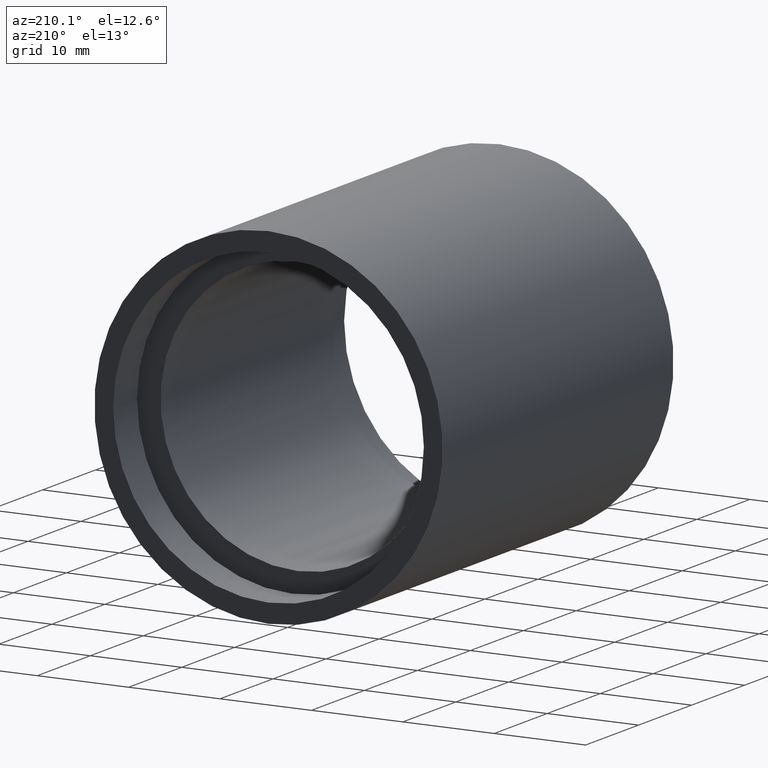
[diagram: clean part render]
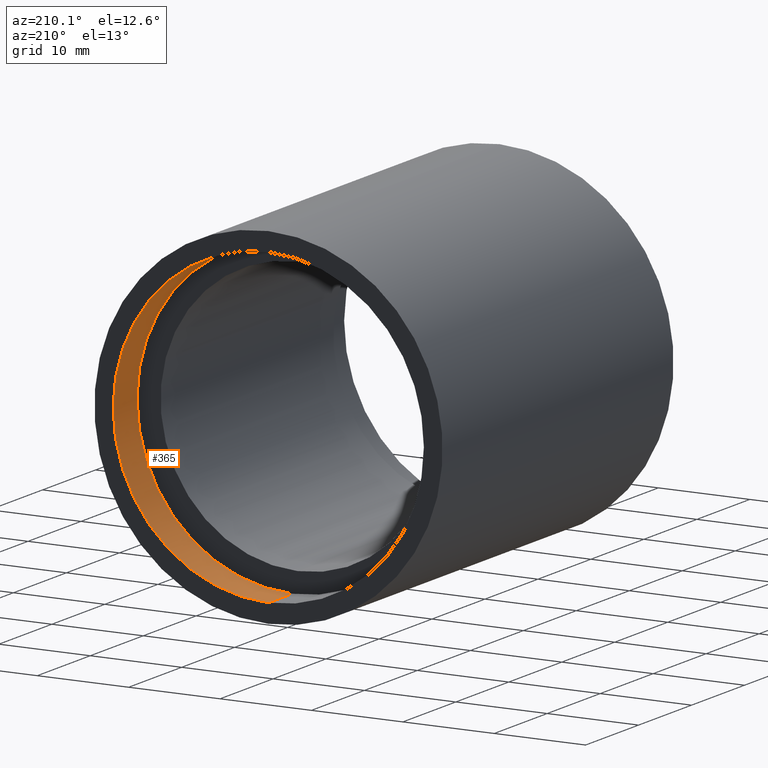
[diagram: same view with one face highlighted and labeled with its STEP entity id]
A machine part, auxiliary view. The second image highlights one B-rep face of the part: STEP entity #365.
In plain terms, the highlighted cylindrical surface (partial cylindrical patch) has radius 17 mm, axis along (-0, 1, -0).
Its self-contained STEP definition (entity closure, byte-faithful):
#12 = CARTESIAN_POINT ( 'NONE',  ( 0.0000000000000000000, 43.59999999999998700, 17.00000000000002100 ) ) ;
#21 = VERTEX_POINT ( 'NONE', #46 ) ;
#24 = CARTESIAN_POINT ( 'NONE',  ( 0.0000000000000000000, 39.09999999999998000, 0.0000000000000000000 ) ) ;
#28 = CYLINDRICAL_SURFACE ( 'NONE', #456, 17.00000000000002100 ) ;
#38 = VERTEX_POINT ( 'NONE', #12 ) ;
#45 = CARTESIAN_POINT ( 'NONE',  ( 0.0000000000000000000, 43.59999999999998700, 0.0000000000000000000 ) ) ;
#46 = CARTESIAN_POINT ( 'NONE',  ( 0.0000000000000000000, 39.09999999999998000, 17.00000000000002100 ) ) ;
#84 = EDGE_CURVE ( 'NONE', #412, #472, #242, .T. ) ;
#87 = DIRECTION ( 'NONE',  ( 0.0000000000000000000, 0.0000000000000000000, 1.000000000000000000 ) ) ;
#132 = DIRECTION ( 'NONE',  ( 0.0000000000000000000, 0.0000000000000000000, 1.000000000000000000 ) ) ;
#142 = ORIENTED_EDGE ( 'NONE', *, *, #84, .F. ) ;
#161 = LINE ( 'NONE', #545, #624 ) ;
#164 = EDGE_CURVE ( 'NONE', #21, #38, #161, .T. ) ;
#168 = EDGE_CURVE ( 'NONE', #21, #412, #577, .T. ) ;
#179 = CARTESIAN_POINT ( 'NONE',  ( 2.081899558550503000E-015, 39.09999999999998000, -17.00000000000002100 ) ) ;
#236 = CARTESIAN_POINT ( 'NONE',  ( 0.0000000000000000000, 161.3761669434274500, 0.0000000000000000000 ) ) ;
#242 = LINE ( 'NONE', #290, #403 ) ;
#252 = DIRECTION ( 'NONE',  ( -0.0000000000000000000, 1.000000000000000000, -0.0000000000000000000 ) ) ;
#268 = DIRECTION ( 'NONE',  ( -0.0000000000000000000, 1.000000000000000000, -0.0000000000000000000 ) ) ;
#290 = CARTESIAN_POINT ( 'NONE',  ( 2.081899558550503000E-015, 161.3761669434274500, -17.00000000000002100 ) ) ;
#304 = ORIENTED_EDGE ( 'NONE', *, *, #168, .F. ) ;
#318 = DIRECTION ( 'NONE',  ( -0.0000000000000000000, 1.000000000000000000, -0.0000000000000000000 ) ) ;
#351 = DIRECTION ( 'NONE',  ( -0.0000000000000000000, 1.000000000000000000, -0.0000000000000000000 ) ) ;
#365 = ADVANCED_FACE ( 'NONE', ( #605 ), #28, .F. ) ;
#380 = EDGE_CURVE ( 'NONE', #38, #472, #459, .T. ) ;
#403 = VECTOR ( 'NONE', #252, 1000.000000000000000 ) ;
#412 = VERTEX_POINT ( 'NONE', #179 ) ;
#415 = AXIS2_PLACEMENT_3D ( 'NONE', #45, #473, #132 ) ;
#427 = ORIENTED_EDGE ( 'NONE', *, *, #380, .T. ) ;
#456 = AXIS2_PLACEMENT_3D ( 'NONE', #236, #318, #87 ) ;
#459 = CIRCLE ( 'NONE', #415, 17.00000000000002100 ) ;
#466 = AXIS2_PLACEMENT_3D ( 'NONE', #24, #351, #596 ) ;
#472 = VERTEX_POINT ( 'NONE', #613 ) ;
#473 = DIRECTION ( 'NONE',  ( -0.0000000000000000000, 1.000000000000000000, -0.0000000000000000000 ) ) ;
#494 = EDGE_LOOP ( 'NONE', ( #142, #304, #517, #427 ) ) ;
#517 = ORIENTED_EDGE ( 'NONE', *, *, #164, .T. ) ;
#545 = CARTESIAN_POINT ( 'NONE',  ( 0.0000000000000000000, 161.3761669434274500, 17.00000000000002100 ) ) ;
#577 = CIRCLE ( 'NONE', #466, 17.00000000000002100 ) ;
#596 = DIRECTION ( 'NONE',  ( 0.0000000000000000000, 0.0000000000000000000, 1.000000000000000000 ) ) ;
#605 = FACE_OUTER_BOUND ( 'NONE', #494, .T. ) ;
#613 = CARTESIAN_POINT ( 'NONE',  ( 2.081899558550503000E-015, 43.59999999999998700, -17.00000000000002100 ) ) ;
#624 = VECTOR ( 'NONE', #268, 1000.000000000000000 ) ;